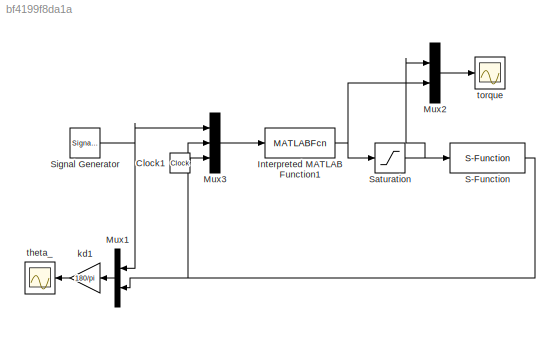
MODEL slx_bf4199f8da1a
KIND model
CONFIG InitFcn = param
BLOCK [Clock] Clock1
BLOCK [MATLABFcn] Interpreted MATLAB Function1
  MATLABFcn = can_ctrl(u,AP)
  OutputDimensions = 1
  Ports = [1, 1]
  SampleTime = AP.Ts
BLOCK [Mux] Mux1
  DisplayOption = bar
  Inputs = 2
  Ports = [2, 1]
BLOCK [Mux] Mux2
  DisplayOption = bar
  Inputs = 2
  Ports = [2, 1]
BLOCK [Mux] Mux3
  DisplayOption = bar
  Inputs = 3
  Ports = [3, 1]
BLOCK [S-Function] S-Function
  EnableBusSupport = off
  FunctionName = can_dynamics
  Parameters = AP
  Ports = [1, 1]
BLOCK [Saturate] Saturation
  InputPortMap = u0
  LowerLimit = -AP.F_max
  Ports = [1, 1]
  SampleTime = AP.Ts
  UpperLimit = AP.F_max
BLOCK [SignalGenerator] Signal Generator
  Amplitude = pi/4
  Ports = [0, 1]
BLOCK [Gain] kd1
  Gain = 180/pi
  OutDataTypeStr = Inherit: Inherit via internal rule
  ParamDataTypeStr = Inherit: Inherit via internal rule
  SaturateOnIntegerOverflow = off
BLOCK [Scope] theta_
  DataFormat = StructureWithTime
  Floating = off
  NumInputPorts = 1
  Ports = [1]
  SampleTime = 0
  SaveName = ScopeData1
  ShowLegends = off
  TimeRange = 10
  YMax = 50
  YMin = -65
BLOCK [Scope] torque
  DataFormat = StructureWithTime
  Floating = off
  NumInputPorts = 1
  Ports = [1]
  SampleTime = 0
  ShowLegends = off
  TimeRange = 10
  YMax = 7
  YMin = -1
LINE Clock1:1 -> Mux3:3
NET Interpreted MATLAB Function1:1 -> Mux2:2, Saturation:1
LINE Mux1:1 -> kd1:1
LINE Mux2:1 -> torque:1
LINE Mux3:1 -> Interpreted MATLAB Function1:1
NET S-Function:1 -> Mux1:2, Mux3:2
NET Saturation:1 -> Mux2:1, S-Function:1
NET Signal Generator:1 -> Mux1:1, Mux3:1
LINE kd1:1 -> theta_:1
note: NET lines group one-source signal fan-out (src -> all destinations, sorted); 1:1 wires keep LINE
